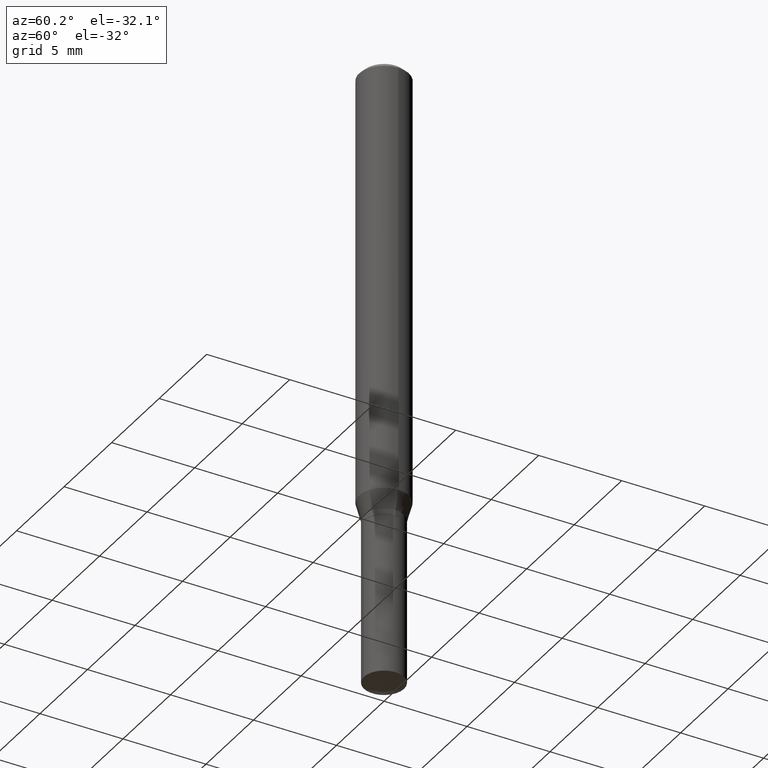
[diagram: clean part render]
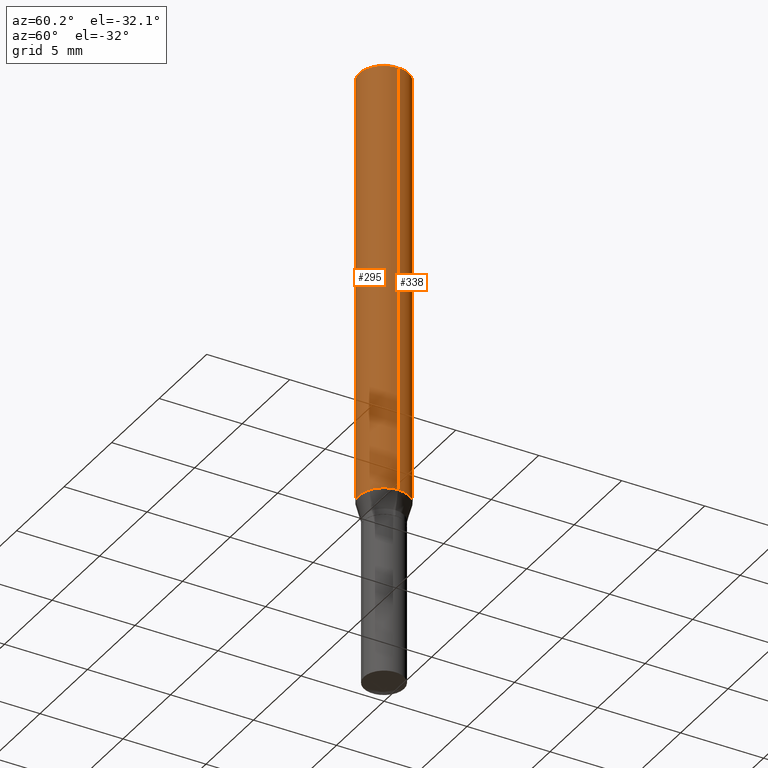
[diagram: same view with one multi-face feature highlighted, each face labeled with its STEP entity id]
A machine part, auxiliary view. The highlighted faces form ONE feature: a constant-radius fillet chain: 2 tangent blend faces with common blend radius 1.4999 mm. The faces share edges in the B-rep.
Their STEP definitions:
[1] entity #295 (Cylinder):
#6 = CARTESIAN_POINT ( 'NONE',  ( 0.000000000000000000, 0.000000000000000000, 0.000000000000000000 ) ) ;
#32 = DIRECTION ( 'NONE',  ( 1.000000000000000000, -6.982962677686266711E-15, 0.000000000000000000 ) ) ;
#34 = DIRECTION ( 'NONE',  ( -2.445468806185136597E-29, 3.491481338843145583E-15, 1.000000000000000000 ) ) ;
#35 = VECTOR ( 'NONE', #170, 39.37007874015748143 ) ;
#65 = CARTESIAN_POINT ( 'NONE',  ( 2.888098660104663328E-31, -4.123439461173779030E-17, -0.01181000000000006871 ) ) ;
#72 = DIRECTION ( 'NONE',  ( 1.000000000000000000, -6.982962677686266711E-15, 4.876176775795936353E-29 ) ) ;
#79 = LINE ( 'NONE', #314, #35 ) ;
#88 = ORIENTED_EDGE ( 'NONE', *, *, #120, .F. ) ;
#104 = CIRCLE ( 'NONE', #394, 0.05904999999999999832 ) ;
#110 = CYLINDRICAL_SURFACE ( 'NONE', #149, 0.05905000000000006771 ) ;
#111 = ORIENTED_EDGE ( 'NONE', *, *, #287, .T. ) ;
#117 = CARTESIAN_POINT ( 'NONE',  ( -0.05904999999999999832, -1.411389119664253704E-15, -0.01181000000000006871 ) ) ;
#120 = EDGE_CURVE ( 'NONE', #298, #446, #79, .T. ) ;
#126 = DIRECTION ( 'NONE',  ( -2.445468806185136597E-29, 3.491481338843145583E-15, 1.000000000000000000 ) ) ;
#147 = VERTEX_POINT ( 'NONE', #207 ) ;
#149 = AXIS2_PLACEMENT_3D ( 'NONE', #6, #417, #72 ) ;
#156 = DIRECTION ( 'NONE',  ( 1.000000000000000000, -6.982962677686265133E-15, 0.000000000000000000 ) ) ;
#170 = DIRECTION ( 'NONE',  ( -2.445468806185136877E-29, 3.491481338843145188E-15, 1.000000000000000000 ) ) ;
#185 = FACE_OUTER_BOUND ( 'NONE', #321, .T. ) ;
#205 = AXIS2_PLACEMENT_3D ( 'NONE', #424, #126, #156 ) ;
#207 = CARTESIAN_POINT ( 'NONE',  ( 0.05905000000000013016, -4.033038761766825162E-15, -1.037008210632200500 ) ) ;
#216 = CARTESIAN_POINT ( 'NONE',  ( 0.05905000000000006771, -4.123439461173745257E-16, 2.879382386107503723E-30 ) ) ;
#244 = VERTEX_POINT ( 'NONE', #452 ) ;
#257 = EDGE_CURVE ( 'NONE', #446, #244, #104, .T. ) ;
#287 = EDGE_CURVE ( 'NONE', #147, #244, #416, .T. ) ;
#295 = ADVANCED_FACE ( 'NONE', ( #185 ), #110, .T. ) ;
#298 = VERTEX_POINT ( 'NONE', #387 ) ;
#314 = CARTESIAN_POINT ( 'NONE',  ( -0.05905000000000006771, 4.195754854663396409E-16, -2.904631170795525045E-30 ) ) ;
#321 = EDGE_LOOP ( 'NONE', ( #88, #437, #111, #400 ) ) ;
#372 = DIRECTION ( 'NONE',  ( -2.445468806185136877E-29, 3.491481338843145188E-15, 1.000000000000000000 ) ) ;
#385 = CIRCLE ( 'NONE', #205, 0.05905000000000013016 ) ;
#387 = CARTESIAN_POINT ( 'NONE',  ( -0.05905000000000013016, -3.201119330183110355E-15, -1.037008210632200500 ) ) ;
#394 = AXIS2_PLACEMENT_3D ( 'NONE', #65, #34, #32 ) ;
#400 = ORIENTED_EDGE ( 'NONE', *, *, #257, .F. ) ;
#405 = EDGE_CURVE ( 'NONE', #298, #147, #385, .T. ) ;
#415 = VECTOR ( 'NONE', #372, 39.37007874015748143 ) ;
#416 = LINE ( 'NONE', #216, #415 ) ;
#417 = DIRECTION ( 'NONE',  ( -2.445468806185136597E-29, 3.491481338843145583E-15, 1.000000000000000000 ) ) ;
#424 = CARTESIAN_POINT ( 'NONE',  ( 2.535971230858911945E-29, -3.620694815649450242E-15, -1.037008210632200500 ) ) ;
#437 = ORIENTED_EDGE ( 'NONE', *, *, #405, .T. ) ;
#446 = VERTEX_POINT ( 'NONE', #117 ) ;
#452 = CARTESIAN_POINT ( 'NONE',  ( 0.05904999999999999832, -4.535783407291118600E-16, -0.01181000000000006871 ) ) ;
[2] entity #338 (Cylinder):
#4 = CARTESIAN_POINT ( 'NONE',  ( 0.000000000000000000, 0.000000000000000000, 0.000000000000000000 ) ) ;
#35 = VECTOR ( 'NONE', #170, 39.37007874015748143 ) ;
#36 = CIRCLE ( 'NONE', #75, 0.05904999999999999832 ) ;
#38 = DIRECTION ( 'NONE',  ( 1.000000000000000000, -6.982962677686266711E-15, 4.876176775795936353E-29 ) ) ;
#43 = AXIS2_PLACEMENT_3D ( 'NONE', #409, #453, #256 ) ;
#74 = ORIENTED_EDGE ( 'NONE', *, *, #345, .F. ) ;
#75 = AXIS2_PLACEMENT_3D ( 'NONE', #373, #265, #337 ) ;
#79 = LINE ( 'NONE', #314, #35 ) ;
#115 = AXIS2_PLACEMENT_3D ( 'NONE', #4, #334, #38 ) ;
#117 = CARTESIAN_POINT ( 'NONE',  ( -0.05904999999999999832, -1.411389119664253704E-15, -0.01181000000000006871 ) ) ;
#120 = EDGE_CURVE ( 'NONE', #298, #446, #79, .T. ) ;
#141 = CIRCLE ( 'NONE', #43, 0.05905000000000013016 ) ;
#144 = ORIENTED_EDGE ( 'NONE', *, *, #287, .F. ) ;
#147 = VERTEX_POINT ( 'NONE', #207 ) ;
#170 = DIRECTION ( 'NONE',  ( -2.445468806185136877E-29, 3.491481338843145188E-15, 1.000000000000000000 ) ) ;
#207 = CARTESIAN_POINT ( 'NONE',  ( 0.05905000000000013016, -4.033038761766825162E-15, -1.037008210632200500 ) ) ;
#216 = CARTESIAN_POINT ( 'NONE',  ( 0.05905000000000006771, -4.123439461173745257E-16, 2.879382386107503723E-30 ) ) ;
#226 = CYLINDRICAL_SURFACE ( 'NONE', #115, 0.05905000000000006771 ) ;
#244 = VERTEX_POINT ( 'NONE', #452 ) ;
#256 = DIRECTION ( 'NONE',  ( 1.000000000000000000, -6.982962677686265133E-15, 0.000000000000000000 ) ) ;
#265 = DIRECTION ( 'NONE',  ( -2.445468806185136597E-29, 3.491481338843145583E-15, 1.000000000000000000 ) ) ;
#278 = EDGE_CURVE ( 'NONE', #147, #298, #141, .T. ) ;
#287 = EDGE_CURVE ( 'NONE', #147, #244, #416, .T. ) ;
#298 = VERTEX_POINT ( 'NONE', #387 ) ;
#314 = CARTESIAN_POINT ( 'NONE',  ( -0.05905000000000006771, 4.195754854663396409E-16, -2.904631170795525045E-30 ) ) ;
#334 = DIRECTION ( 'NONE',  ( -2.445468806185136597E-29, 3.491481338843145583E-15, 1.000000000000000000 ) ) ;
#337 = DIRECTION ( 'NONE',  ( 1.000000000000000000, -6.982962677686266711E-15, 0.000000000000000000 ) ) ;
#338 = ADVANCED_FACE ( 'NONE', ( #343 ), #226, .T. ) ;
#343 = FACE_OUTER_BOUND ( 'NONE', #490, .T. ) ;
#345 = EDGE_CURVE ( 'NONE', #244, #446, #36, .T. ) ;
#372 = DIRECTION ( 'NONE',  ( -2.445468806185136877E-29, 3.491481338843145188E-15, 1.000000000000000000 ) ) ;
#373 = CARTESIAN_POINT ( 'NONE',  ( 2.888098660104663328E-31, -4.123439461173779030E-17, -0.01181000000000006871 ) ) ;
#387 = CARTESIAN_POINT ( 'NONE',  ( -0.05905000000000013016, -3.201119330183110355E-15, -1.037008210632200500 ) ) ;
#388 = ORIENTED_EDGE ( 'NONE', *, *, #278, .T. ) ;
#403 = ORIENTED_EDGE ( 'NONE', *, *, #120, .T. ) ;
#409 = CARTESIAN_POINT ( 'NONE',  ( 2.535971230858911945E-29, -3.620694815649450242E-15, -1.037008210632200500 ) ) ;
#415 = VECTOR ( 'NONE', #372, 39.37007874015748143 ) ;
#416 = LINE ( 'NONE', #216, #415 ) ;
#446 = VERTEX_POINT ( 'NONE', #117 ) ;
#452 = CARTESIAN_POINT ( 'NONE',  ( 0.05904999999999999832, -4.535783407291118600E-16, -0.01181000000000006871 ) ) ;
#453 = DIRECTION ( 'NONE',  ( -2.445468806185136597E-29, 3.491481338843145583E-15, 1.000000000000000000 ) ) ;
#490 = EDGE_LOOP ( 'NONE', ( #388, #403, #74, #144 ) ) ;